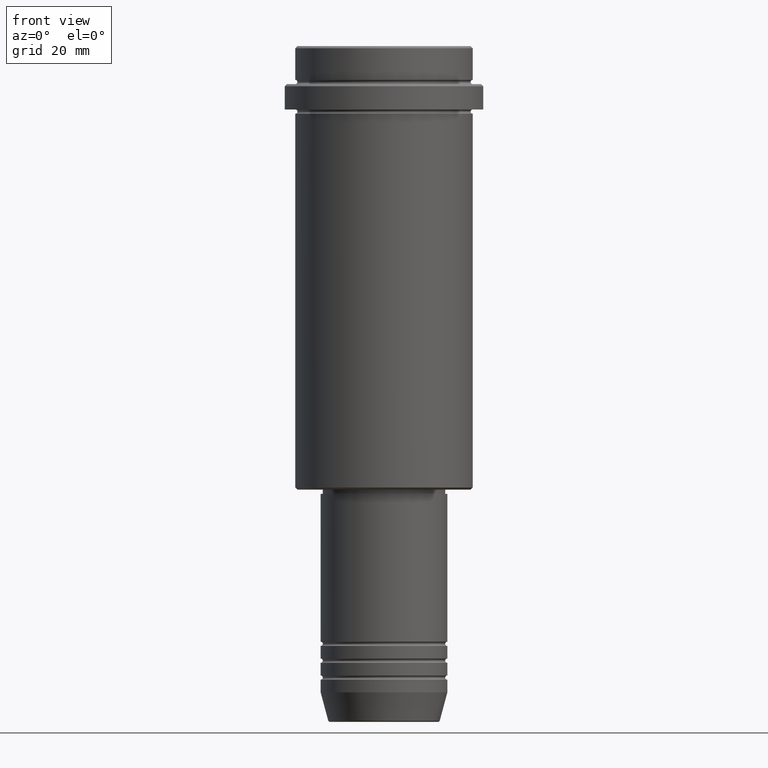
[diagram: clean part render]
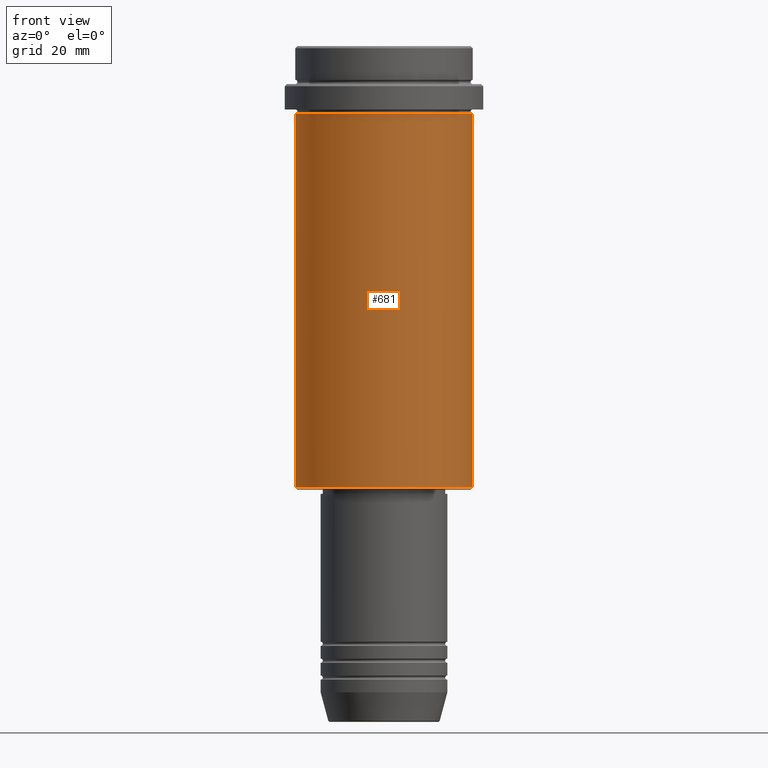
[diagram: same view with one face highlighted and labeled with its STEP entity id]
A machine part, front view. The second image highlights one B-rep face of the part: STEP entity #681.
In plain terms, the highlighted cylindrical surface (partial cylindrical patch) has radius 21 mm, axis along (-0, -0, 1).
Its self-contained STEP definition (entity closure, byte-faithful):
#14 = VERTEX_POINT ( 'NONE', #727 ) ;
#28 = VERTEX_POINT ( 'NONE', #1058 ) ;
#46 = CARTESIAN_POINT ( 'NONE',  ( 21.00000000000000000, 0.000000000000000000, -104.4999999999999858 ) ) ;
#61 = VERTEX_POINT ( 'NONE', #46 ) ;
#68 = CARTESIAN_POINT ( 'NONE',  ( -21.00000000000000000, 2.571758278209441661E-15, 0.000000000000000000 ) ) ;
#89 = CARTESIAN_POINT ( 'NONE',  ( 0.000000000000000000, 0.000000000000000000, 0.000000000000000000 ) ) ;
#101 = CIRCLE ( 'NONE', #885, 21.00000000000000000 ) ;
#175 = CIRCLE ( 'NONE', #448, 21.00000000000000000 ) ;
#208 = DIRECTION ( 'NONE',  ( -0.000000000000000000, -0.000000000000000000, 1.000000000000000000 ) ) ;
#272 = LINE ( 'NONE', #68, #1129 ) ;
#399 = DIRECTION ( 'NONE',  ( -0.000000000000000000, -0.000000000000000000, 1.000000000000000000 ) ) ;
#400 = AXIS2_PLACEMENT_3D ( 'NONE', #89, #208, #1412 ) ;
#415 = EDGE_CURVE ( 'NONE', #1337, #28, #175, .T. ) ;
#448 = AXIS2_PLACEMENT_3D ( 'NONE', #463, #909, #1336 ) ;
#463 = CARTESIAN_POINT ( 'NONE',  ( 0.000000000000000000, 0.000000000000000000, -16.00000000000000355 ) ) ;
#477 = ORIENTED_EDGE ( 'NONE', *, *, #593, .T. ) ;
#502 = ORIENTED_EDGE ( 'NONE', *, *, #1339, .F. ) ;
#593 = EDGE_CURVE ( 'NONE', #61, #28, #714, .T. ) ;
#681 = ADVANCED_FACE ( 'NONE', ( #1065 ), #1073, .T. ) ;
#714 = LINE ( 'NONE', #1169, #1407 ) ;
#727 = CARTESIAN_POINT ( 'NONE',  ( -21.00000000000000000, 2.571758278209441661E-15, -104.4999999999999858 ) ) ;
#729 = DIRECTION ( 'NONE',  ( -0.000000000000000000, -0.000000000000000000, 1.000000000000000000 ) ) ;
#745 = CARTESIAN_POINT ( 'NONE',  ( 0.000000000000000000, 0.000000000000000000, -104.4999999999999858 ) ) ;
#794 = EDGE_LOOP ( 'NONE', ( #502, #1284, #477, #1046 ) ) ;
#885 = AXIS2_PLACEMENT_3D ( 'NONE', #745, #729, #1361 ) ;
#909 = DIRECTION ( 'NONE',  ( -0.000000000000000000, -0.000000000000000000, 1.000000000000000000 ) ) ;
#1046 = ORIENTED_EDGE ( 'NONE', *, *, #415, .F. ) ;
#1058 = CARTESIAN_POINT ( 'NONE',  ( 21.00000000000000000, 0.000000000000000000, -16.00000000000000355 ) ) ;
#1065 = FACE_OUTER_BOUND ( 'NONE', #794, .T. ) ;
#1073 = CYLINDRICAL_SURFACE ( 'NONE', #400, 21.00000000000000000 ) ;
#1129 = VECTOR ( 'NONE', #399, 1000.000000000000000 ) ;
#1169 = CARTESIAN_POINT ( 'NONE',  ( 21.00000000000000000, 0.000000000000000000, 0.000000000000000000 ) ) ;
#1283 = CARTESIAN_POINT ( 'NONE',  ( -21.00000000000000000, 2.571758278209441661E-15, -16.00000000000000355 ) ) ;
#1284 = ORIENTED_EDGE ( 'NONE', *, *, #1364, .T. ) ;
#1336 = DIRECTION ( 'NONE',  ( 1.000000000000000000, 0.000000000000000000, 0.000000000000000000 ) ) ;
#1337 = VERTEX_POINT ( 'NONE', #1283 ) ;
#1339 = EDGE_CURVE ( 'NONE', #14, #1337, #272, .T. ) ;
#1361 = DIRECTION ( 'NONE',  ( -1.000000000000000000, 0.000000000000000000, 0.000000000000000000 ) ) ;
#1364 = EDGE_CURVE ( 'NONE', #14, #61, #101, .T. ) ;
#1402 = DIRECTION ( 'NONE',  ( -0.000000000000000000, -0.000000000000000000, 1.000000000000000000 ) ) ;
#1407 = VECTOR ( 'NONE', #1402, 1000.000000000000000 ) ;
#1412 = DIRECTION ( 'NONE',  ( 1.000000000000000000, 0.000000000000000000, 0.000000000000000000 ) ) ;